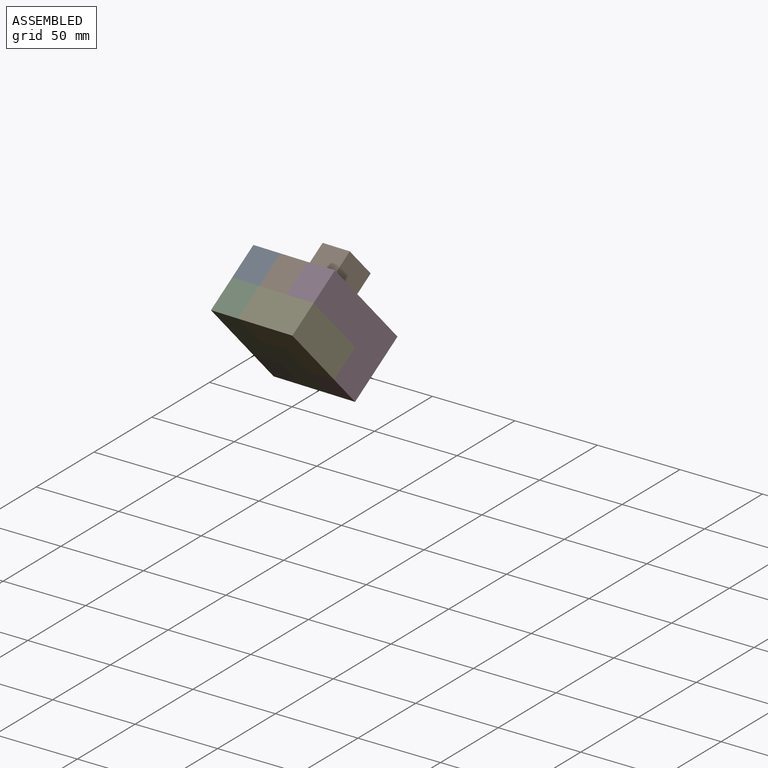
[diagram: assembled view]
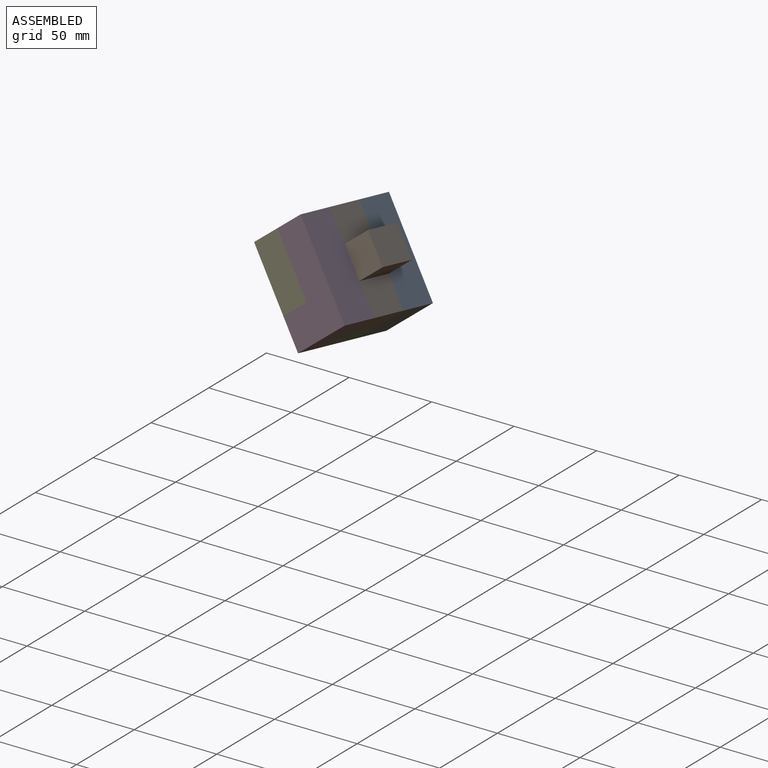
[diagram: assembled view, second angle]
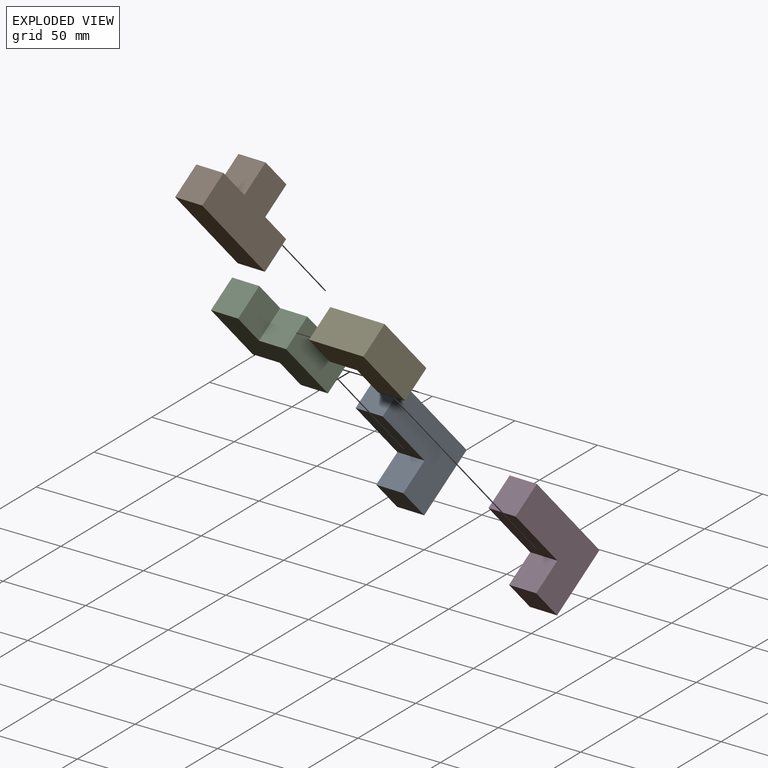
[diagram: exploded view]
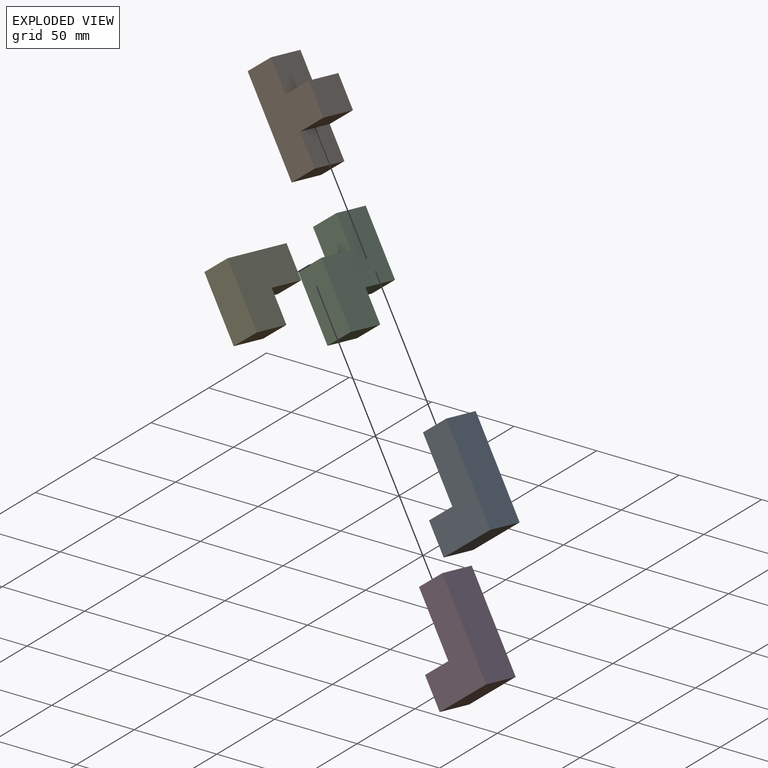
[diagram: exploded view, second angle]
ASSEMBLY  parts=5 mates=4
PART A: 8 faces, bbox 40x20x60 mm
  f0: plane 20x20mm, normal (0,0,1), area 400mm2, adj f1,f5,f6,f7
  f1: plane 60x20mm, normal (-1,0,0), area 1200mm2, adj f0,f2,f6,f7
  f2: plane 40x20mm, normal (0,0,-1), area 800mm2, adj f1,f3,f6,f7
  f3: plane 20x20mm, normal (1,0,0), area 400mm2, adj f2,f4,f6,f7
  f4: plane 20x20mm, normal (0,0,1), area 400mm2, adj f3,f5,f6,f7
  f5: plane 40x20mm, normal (1,0,0), area 800mm2, adj f0,f4,f6,f7
  f6: plane 60x40mm, normal (0,-1,0), area 1600mm2, adj f0,f1,f2,f3,f4,f5
  f7: plane 60x40mm, normal (0,1,0), area 1600mm2, adj f0,f1,f2,f3,f4,f5
PART B: 10 faces, bbox 60x20x40 mm
  f0: plane 20x20mm, normal (-1,0,0), area 400mm2, adj f1,f7,f8,f9
  f1: plane 60x20mm, normal (0,0,-1), area 1200mm2, adj f0,f2,f8,f9
  f2: plane 20x20mm, normal (1,0,0), area 400mm2, adj f1,f3,f8,f9
  f3: plane 20x20mm, normal (0,0,1), area 400mm2, adj f2,f4,f8,f9
  f4: plane 20x20mm, normal (1,0,0), area 400mm2, adj f3,f5,f8,f9
  f5: plane 20x20mm, normal (0,0,1), area 400mm2, adj f4,f6,f8,f9
  f6: plane 20x20mm, normal (-1,0,0), area 400mm2, adj f5,f7,f8,f9
  f7: plane 20x20mm, normal (0,0,1), area 400mm2, adj f0,f6,f8,f9
  f8: plane 60x40mm, normal (0,-1,0), area 1600mm2, adj f0,f1,f2,f3,f4,f5,f6,f7
  f9: plane 60x40mm, normal (0,1,0), area 1600mm2, adj f0,f1,f2,f3,f4,f5,f6,f7
PART C: 10 faces, bbox 40x20x60 mm
  f0: plane 20x20mm, normal (0,0,1), area 400mm2, adj f1,f7,f8,f9
  f1: plane 40x20mm, normal (-1,0,0), area 800mm2, adj f0,f2,f8,f9
  f2: plane 20x20mm, normal (0,0,-1), area 400mm2, adj f1,f3,f8,f9
  f3: plane 20x20mm, normal (-1,0,0), area 400mm2, adj f2,f4,f8,f9
  f4: plane 20x20mm, normal (0,0,-1), area 400mm2, adj f3,f5,f8,f9
  f5: plane 40x20mm, normal (1,0,0), area 800mm2, adj f4,f6,f8,f9
  f6: plane 20x20mm, normal (0,0,1), area 400mm2, adj f5,f7,f8,f9
  f7: plane 20x20mm, normal (1,0,0), area 400mm2, adj f0,f6,f8,f9
  f8: plane 60x40mm, normal (0,-1,0), area 1600mm2, adj f0,f1,f2,f3,f4,f5,f6,f7
  f9: plane 60x40mm, normal (0,1,0), area 1600mm2, adj f0,f1,f2,f3,f4,f5,f6,f7
PART D: same geometry as A
PART E: 8 faces, bbox 40x20x40 mm
  f0: plane 20x20mm, normal (0,0,1), area 400mm2, adj f1,f5,f6,f7
  f1: plane 40x20mm, normal (-1,0,0), area 800mm2, adj f0,f2,f6,f7
  f2: plane 40x20mm, normal (0,0,-1), area 800mm2, adj f1,f3,f6,f7
  f3: plane 20x20mm, normal (1,0,0), area 400mm2, adj f2,f4,f6,f7
  f4: plane 20x20mm, normal (0,0,1), area 400mm2, adj f3,f5,f6,f7
  f5: plane 20x20mm, normal (1,0,0), area 400mm2, adj f0,f4,f6,f7
  f6: plane 40x40mm, normal (0,-1,0), area 1200mm2, adj f0,f1,f2,f3,f4,f5
  f7: plane 40x40mm, normal (0,1,0), area 1200mm2, adj f0,f1,f2,f3,f4,f5
PLACE A rot(axis=(0.37,0.21,-0.91),105.6deg) t=(-29.83,6.5,-14.57)mm
PLACE B rot(axis=(-0.36,-0.37,-0.86),113.7deg) t=(-13.28,11.95,32.46)mm
PLACE C rot(axis=(0.94,-0.25,-0.24),40.5deg) t=(-9.63,11.51,-1.23)mm
PLACE D rot(axis=(0.37,0.21,-0.91),105.6deg) t=(9.02,-1.99,-10.25)mm
PLACE E rot(axis=(-0.76,-0.18,0.63),146.4deg) t=(13.83,-9.76,-10.61)mm
MATE fastened A.f4 <-> C.f2  axis (-0.22,-0.6,0.77) through (-40.25,8.8,-8.97)mm
MATE fastened D.f4 <-> E.f3  axis (-0.22,-0.6,0.77) through (-1.4,0.31,-4.66)mm
MATE fastened E.f0 <-> C.f7  axis (-0.97,0.21,-0.11) through (-35.86,-12.98,1.34)mm
MATE fastened B.f0 <-> D.f2  axis (0.22,0.6,-0.77) through (-5.79,22.09,-14.97)mm
